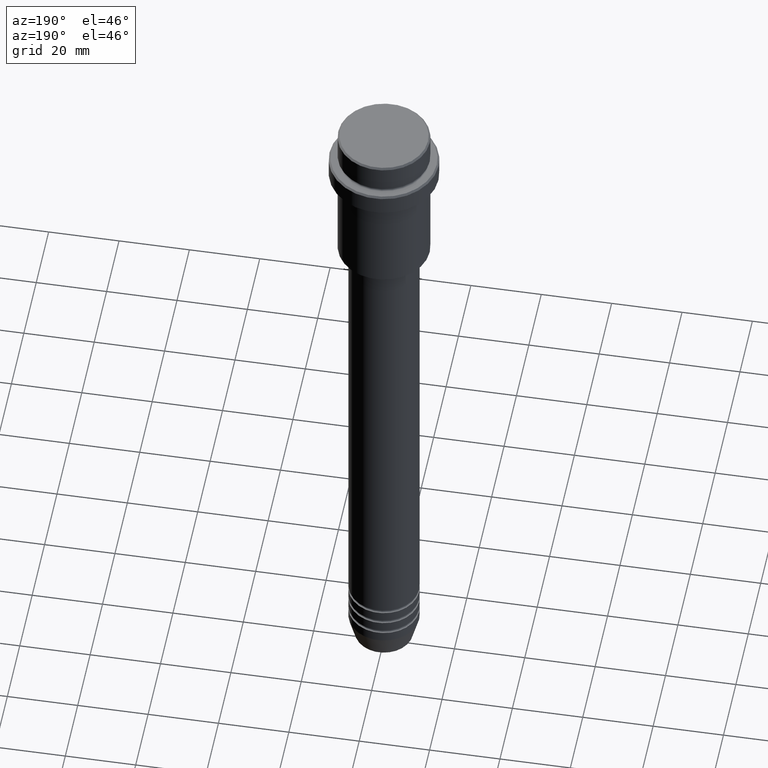
[diagram: clean part render]
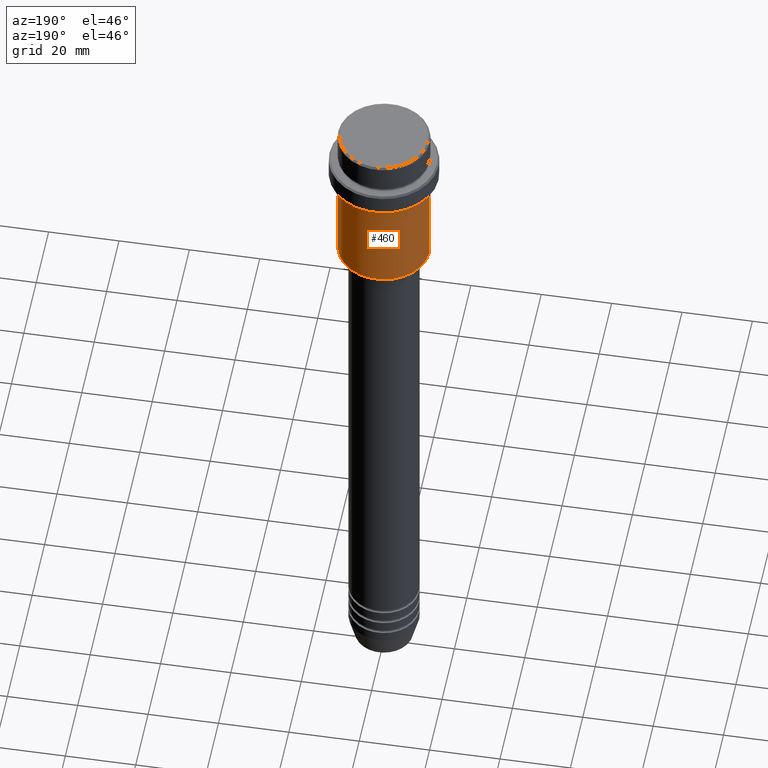
[diagram: same view with one face highlighted and labeled with its STEP entity id]
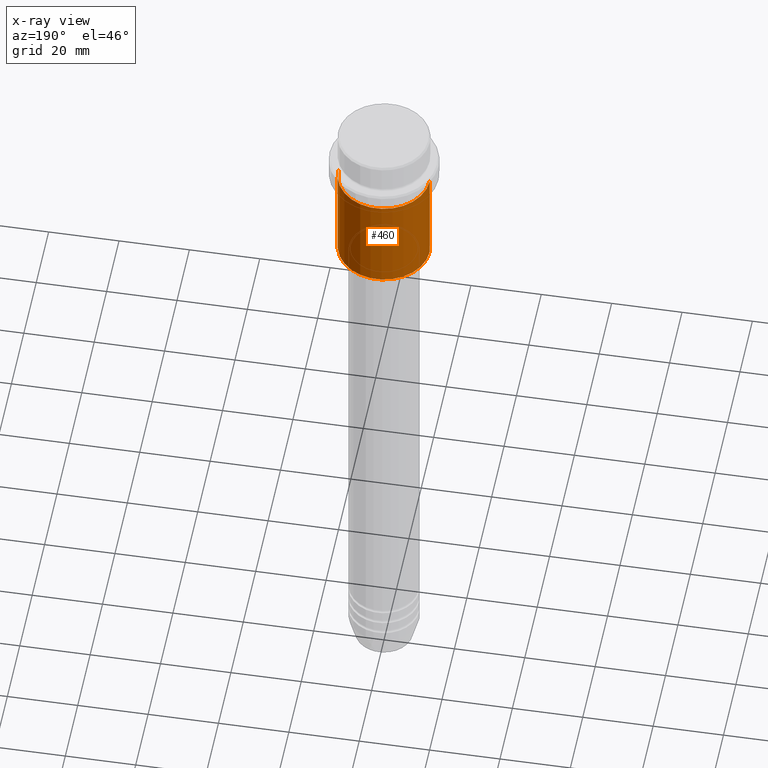
[diagram: x-ray of the same camera — body ghosted, the highlighted face saturated]
A machine part, auxiliary view. The second image highlights one B-rep face of the part: STEP entity #460.
The next image is the same camera in x-ray: the body ghosted, the highlighted face saturated — about 0% of this face is hidden behind the body in this view.
In plain terms, the highlighted cylindrical surface (partial cylindrical patch) has radius 13 mm, axis along (-0, -0, 1).
Its self-contained STEP definition (entity closure, byte-faithful):
#107 = AXIS2_PLACEMENT_3D ( 'NONE', #957, #747, #197 ) ;
#192 = ORIENTED_EDGE ( 'NONE', *, *, #1033, .T. ) ;
#197 = DIRECTION ( 'NONE',  ( 1.000000000000000000, 0.000000000000000000, 0.000000000000000000 ) ) ;
#218 = DIRECTION ( 'NONE',  ( -0.000000000000000000, -0.000000000000000000, 1.000000000000000000 ) ) ;
#224 = DIRECTION ( 'NONE',  ( -1.000000000000000000, 0.000000000000000000, 0.000000000000000000 ) ) ;
#226 = AXIS2_PLACEMENT_3D ( 'NONE', #230, #1223, #1234 ) ;
#230 = CARTESIAN_POINT ( 'NONE',  ( 0.000000000000000000, 0.000000000000000000, -16.00000000000000000 ) ) ;
#280 = VECTOR ( 'NONE', #1324, 1000.000000000000000 ) ;
#316 = VERTEX_POINT ( 'NONE', #550 ) ;
#324 = CIRCLE ( 'NONE', #1025, 13.00000000000000000 ) ;
#355 = CARTESIAN_POINT ( 'NONE',  ( 13.00000000000000000, 0.000000000000000000, -44.50000000000004974 ) ) ;
#375 = CARTESIAN_POINT ( 'NONE',  ( -13.00000000000000000, 1.592040838891559095E-15, -16.00000000000000000 ) ) ;
#401 = ORIENTED_EDGE ( 'NONE', *, *, #1392, .T. ) ;
#453 = VECTOR ( 'NONE', #582, 1000.000000000000000 ) ;
#460 = ADVANCED_FACE ( 'NONE', ( #1059 ), #516, .T. ) ;
#516 = CYLINDRICAL_SURFACE ( 'NONE', #107, 13.00000000000000000 ) ;
#521 = EDGE_CURVE ( 'NONE', #316, #1151, #1273, .T. ) ;
#550 = CARTESIAN_POINT ( 'NONE',  ( 13.00000000000000000, 0.000000000000000000, -16.00000000000000000 ) ) ;
#559 = VERTEX_POINT ( 'NONE', #355 ) ;
#582 = DIRECTION ( 'NONE',  ( -0.000000000000000000, -0.000000000000000000, 1.000000000000000000 ) ) ;
#653 = ORIENTED_EDGE ( 'NONE', *, *, #1071, .F. ) ;
#747 = DIRECTION ( 'NONE',  ( -0.000000000000000000, -0.000000000000000000, 1.000000000000000000 ) ) ;
#896 = CARTESIAN_POINT ( 'NONE',  ( -13.00000000000000000, 1.592040838891559095E-15, -44.50000000000004974 ) ) ;
#957 = CARTESIAN_POINT ( 'NONE',  ( 0.000000000000000000, 0.000000000000000000, 0.000000000000000000 ) ) ;
#1020 = VERTEX_POINT ( 'NONE', #896 ) ;
#1025 = AXIS2_PLACEMENT_3D ( 'NONE', #1199, #218, #224 ) ;
#1033 = EDGE_CURVE ( 'NONE', #559, #1020, #324, .T. ) ;
#1059 = FACE_OUTER_BOUND ( 'NONE', #1122, .T. ) ;
#1071 = EDGE_CURVE ( 'NONE', #559, #316, #1244, .T. ) ;
#1122 = EDGE_LOOP ( 'NONE', ( #192, #401, #1270, #653 ) ) ;
#1151 = VERTEX_POINT ( 'NONE', #375 ) ;
#1199 = CARTESIAN_POINT ( 'NONE',  ( 0.000000000000000000, 0.000000000000000000, -44.50000000000004974 ) ) ;
#1201 = CARTESIAN_POINT ( 'NONE',  ( -13.00000000000000000, 1.592040838891559095E-15, 0.000000000000000000 ) ) ;
#1223 = DIRECTION ( 'NONE',  ( -0.000000000000000000, -0.000000000000000000, 1.000000000000000000 ) ) ;
#1234 = DIRECTION ( 'NONE',  ( 1.000000000000000000, 0.000000000000000000, 0.000000000000000000 ) ) ;
#1244 = LINE ( 'NONE', #1355, #453 ) ;
#1270 = ORIENTED_EDGE ( 'NONE', *, *, #521, .F. ) ;
#1273 = CIRCLE ( 'NONE', #226, 13.00000000000000000 ) ;
#1315 = LINE ( 'NONE', #1201, #280 ) ;
#1324 = DIRECTION ( 'NONE',  ( -0.000000000000000000, -0.000000000000000000, 1.000000000000000000 ) ) ;
#1355 = CARTESIAN_POINT ( 'NONE',  ( 13.00000000000000000, 0.000000000000000000, 0.000000000000000000 ) ) ;
#1392 = EDGE_CURVE ( 'NONE', #1020, #1151, #1315, .T. ) ;